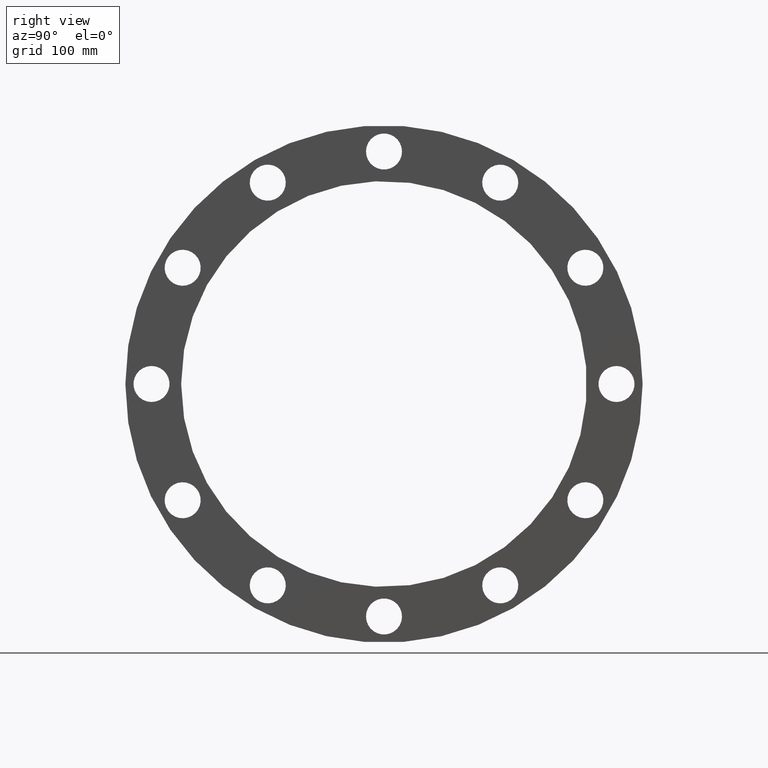
[diagram: clean part render]
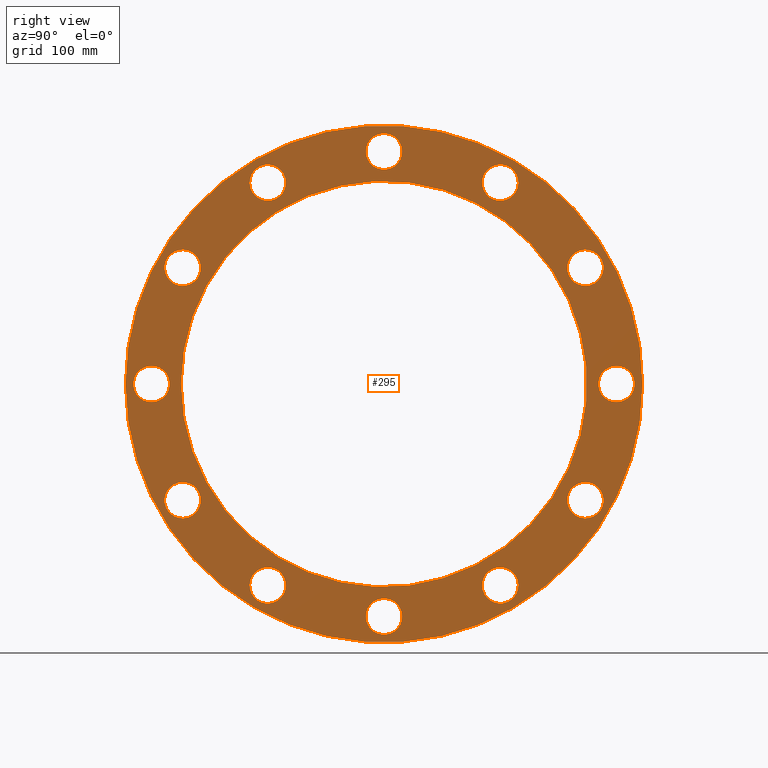
[diagram: same view with one face highlighted and labeled with its STEP entity id]
A machine part, right view. The second image highlights one B-rep face of the part: STEP entity #295.
In plain terms, the highlighted planar face has unit normal (1, 0, 0).
Its self-contained STEP definition (entity closure, byte-faithful):
#16=PLANE('',#337);
#30=FACE_BOUND('',#99,.T.);
#31=FACE_BOUND('',#100,.T.);
#32=FACE_BOUND('',#101,.T.);
#33=FACE_BOUND('',#102,.T.);
#34=FACE_BOUND('',#103,.T.);
#35=FACE_BOUND('',#104,.T.);
#36=FACE_BOUND('',#105,.T.);
#37=FACE_BOUND('',#106,.T.);
#38=FACE_BOUND('',#107,.T.);
#39=FACE_BOUND('',#108,.T.);
#40=FACE_BOUND('',#109,.T.);
#41=FACE_BOUND('',#110,.T.);
#42=FACE_BOUND('',#111,.T.);
#70=FACE_OUTER_BOUND('',#98,.T.);
#98=EDGE_LOOP('',(#238));
#99=EDGE_LOOP('',(#239));
#100=EDGE_LOOP('',(#240));
#101=EDGE_LOOP('',(#241));
#102=EDGE_LOOP('',(#242));
#103=EDGE_LOOP('',(#243));
#104=EDGE_LOOP('',(#244));
#105=EDGE_LOOP('',(#245));
#106=EDGE_LOOP('',(#246));
#107=EDGE_LOOP('',(#247));
#108=EDGE_LOOP('',(#248));
#109=EDGE_LOOP('',(#249));
#110=EDGE_LOOP('',(#250));
#111=EDGE_LOOP('',(#251));
#131=CIRCLE('',#303,15.5);
#133=CIRCLE('',#306,15.5);
#135=CIRCLE('',#309,15.5);
#137=CIRCLE('',#312,15.5);
#139=CIRCLE('',#315,15.5);
#141=CIRCLE('',#318,15.5);
#143=CIRCLE('',#321,15.5);
#145=CIRCLE('',#324,15.5);
#147=CIRCLE('',#327,15.5);
#149=CIRCLE('',#330,15.5);
#151=CIRCLE('',#333,15.5);
#153=CIRCLE('',#336,15.5);
#154=CIRCLE('',#338,222.5);
#155=CIRCLE('',#339,174.5);
#159=VERTEX_POINT('',#439);
#161=VERTEX_POINT('',#444);
#163=VERTEX_POINT('',#449);
#165=VERTEX_POINT('',#454);
#167=VERTEX_POINT('',#459);
#169=VERTEX_POINT('',#464);
#171=VERTEX_POINT('',#469);
#173=VERTEX_POINT('',#474);
#175=VERTEX_POINT('',#479);
#177=VERTEX_POINT('',#484);
#179=VERTEX_POINT('',#489);
#181=VERTEX_POINT('',#494);
#182=VERTEX_POINT('',#497);
#183=VERTEX_POINT('',#499);
#187=EDGE_CURVE('',#159,#159,#131,.T.);
#189=EDGE_CURVE('',#161,#161,#133,.T.);
#191=EDGE_CURVE('',#163,#163,#135,.T.);
#193=EDGE_CURVE('',#165,#165,#137,.T.);
#195=EDGE_CURVE('',#167,#167,#139,.T.);
#197=EDGE_CURVE('',#169,#169,#141,.T.);
#199=EDGE_CURVE('',#171,#171,#143,.T.);
#201=EDGE_CURVE('',#173,#173,#145,.T.);
#203=EDGE_CURVE('',#175,#175,#147,.T.);
#205=EDGE_CURVE('',#177,#177,#149,.T.);
#207=EDGE_CURVE('',#179,#179,#151,.T.);
#209=EDGE_CURVE('',#181,#181,#153,.T.);
#210=EDGE_CURVE('',#182,#182,#154,.T.);
#211=EDGE_CURVE('',#183,#183,#155,.T.);
#238=ORIENTED_EDGE('',*,*,#210,.F.);
#239=ORIENTED_EDGE('',*,*,#187,.T.);
#240=ORIENTED_EDGE('',*,*,#189,.T.);
#241=ORIENTED_EDGE('',*,*,#191,.T.);
#242=ORIENTED_EDGE('',*,*,#193,.T.);
#243=ORIENTED_EDGE('',*,*,#195,.T.);
#244=ORIENTED_EDGE('',*,*,#197,.T.);
#245=ORIENTED_EDGE('',*,*,#199,.T.);
#246=ORIENTED_EDGE('',*,*,#201,.T.);
#247=ORIENTED_EDGE('',*,*,#203,.T.);
#248=ORIENTED_EDGE('',*,*,#205,.T.);
#249=ORIENTED_EDGE('',*,*,#207,.T.);
#250=ORIENTED_EDGE('',*,*,#209,.T.);
#251=ORIENTED_EDGE('',*,*,#211,.T.);
#295=ADVANCED_FACE('',(#70,#30,#31,#32,#33,#34,#35,#36,#37,#38,#39,#40,
#41,#42),#16,.T.);
#303=AXIS2_PLACEMENT_3D('',#440,#351,#352);
#306=AXIS2_PLACEMENT_3D('',#445,#357,#358);
#309=AXIS2_PLACEMENT_3D('',#450,#363,#364);
#312=AXIS2_PLACEMENT_3D('',#455,#369,#370);
#315=AXIS2_PLACEMENT_3D('',#460,#375,#376);
#318=AXIS2_PLACEMENT_3D('',#465,#381,#382);
#321=AXIS2_PLACEMENT_3D('',#470,#387,#388);
#324=AXIS2_PLACEMENT_3D('',#475,#393,#394);
#327=AXIS2_PLACEMENT_3D('',#480,#399,#400);
#330=AXIS2_PLACEMENT_3D('',#485,#405,#406);
#333=AXIS2_PLACEMENT_3D('',#490,#411,#412);
#336=AXIS2_PLACEMENT_3D('',#495,#417,#418);
#337=AXIS2_PLACEMENT_3D('',#496,#419,#420);
#338=AXIS2_PLACEMENT_3D('',#498,#421,#422);
#339=AXIS2_PLACEMENT_3D('',#500,#423,#424);
#351=DIRECTION('center_axis',(-1.,0.,0.));
#352=DIRECTION('ref_axis',(0.,-0.5,0.866025403784438));
#357=DIRECTION('center_axis',(-1.,0.,0.));
#358=DIRECTION('ref_axis',(0.,-0.866025403784439,0.499999999999999));
#363=DIRECTION('center_axis',(-1.,0.,0.));
#364=DIRECTION('ref_axis',(0.,-1.,-2.14881875733901E-16));
#369=DIRECTION('center_axis',(-1.,0.,0.));
#370=DIRECTION('ref_axis',(0.,-0.866025403784438,-0.5));
#375=DIRECTION('center_axis',(-1.,0.,0.));
#376=DIRECTION('ref_axis',(0.,-0.5,-0.866025403784439));
#381=DIRECTION('center_axis',(-1.,0.,0.));
#382=DIRECTION('ref_axis',(0.,7.16272919113004E-17,-1.));
#387=DIRECTION('center_axis',(-1.,0.,0.));
#388=DIRECTION('ref_axis',(0.,0.5,-0.866025403784438));
#393=DIRECTION('center_axis',(-1.,0.,0.));
#394=DIRECTION('ref_axis',(0.,0.866025403784439,-0.5));
#399=DIRECTION('center_axis',(-1.,0.,0.));
#400=DIRECTION('ref_axis',(0.,1.,7.16272919113004E-17));
#405=DIRECTION('center_axis',(-1.,0.,0.));
#406=DIRECTION('ref_axis',(0.,0.866025403784439,0.5));
#411=DIRECTION('center_axis',(-1.,0.,0.));
#412=DIRECTION('ref_axis',(0.,0.5,0.866025403784439));
#417=DIRECTION('center_axis',(-1.,0.,0.));
#418=DIRECTION('ref_axis',(0.,0.,1.));
#419=DIRECTION('center_axis',(1.,0.,0.));
#420=DIRECTION('ref_axis',(0.,0.,-1.));
#421=DIRECTION('center_axis',(-1.,0.,0.));
#422=DIRECTION('ref_axis',(0.,0.,1.));
#423=DIRECTION('center_axis',(-1.,0.,0.));
#424=DIRECTION('ref_axis',(0.,0.,1.));
#439=CARTESIAN_POINT('',(15.5,180.955080756888,86.5766062413413));
#440=CARTESIAN_POINT('Origin',(15.5,173.205080756888,100.));
#444=CARTESIAN_POINT('',(15.5,113.423393758659,165.455080756888));
#445=CARTESIAN_POINT('Origin',(15.5,99.9999999999999,173.205080756888));
#449=CARTESIAN_POINT('',(15.5,15.4999999999999,200.));
#450=CARTESIAN_POINT('Origin',(15.5,-5.32907051820075E-14,200.));
#454=CARTESIAN_POINT('',(15.5,-86.5766062413413,180.955080756888));
#455=CARTESIAN_POINT('Origin',(15.5,-100.,173.205080756888));
#459=CARTESIAN_POINT('',(15.5,-165.455080756888,113.423393758659));
#460=CARTESIAN_POINT('Origin',(15.5,-173.205080756888,99.9999999999999));
#464=CARTESIAN_POINT('',(15.5,-200.,15.5));
#465=CARTESIAN_POINT('Origin',(15.5,-200.,-3.5527136788005E-14));
#469=CARTESIAN_POINT('',(15.5,-180.955080756888,-86.5766062413413));
#470=CARTESIAN_POINT('Origin',(15.5,-173.205080756888,-100.));
#474=CARTESIAN_POINT('',(15.5,-113.423393758659,-165.455080756888));
#475=CARTESIAN_POINT('Origin',(15.5,-99.9999999999999,-173.205080756888));
#479=CARTESIAN_POINT('',(15.5,-15.5,-200.));
#480=CARTESIAN_POINT('Origin',(15.5,1.77635683940025E-14,-200.));
#484=CARTESIAN_POINT('',(15.5,86.5766062413412,-180.955080756888));
#485=CARTESIAN_POINT('Origin',(15.5,100.,-173.205080756888));
#489=CARTESIAN_POINT('',(15.5,165.455080756888,-113.423393758659));
#490=CARTESIAN_POINT('Origin',(15.5,173.205080756888,-100.));
#494=CARTESIAN_POINT('',(15.5,200.,-15.5));
#495=CARTESIAN_POINT('Origin',(15.5,200.,0.));
#496=CARTESIAN_POINT('Origin',(15.5,-222.5,0.));
#497=CARTESIAN_POINT('',(15.5,-222.5,0.));
#498=CARTESIAN_POINT('Origin',(15.5,0.,0.));
#499=CARTESIAN_POINT('',(15.5,-174.5,0.));
#500=CARTESIAN_POINT('Origin',(15.5,0.,0.));